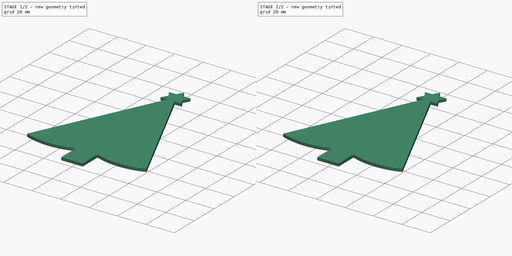
[diagram: build sequence overview — one tinted view per stage of 2, left to right]
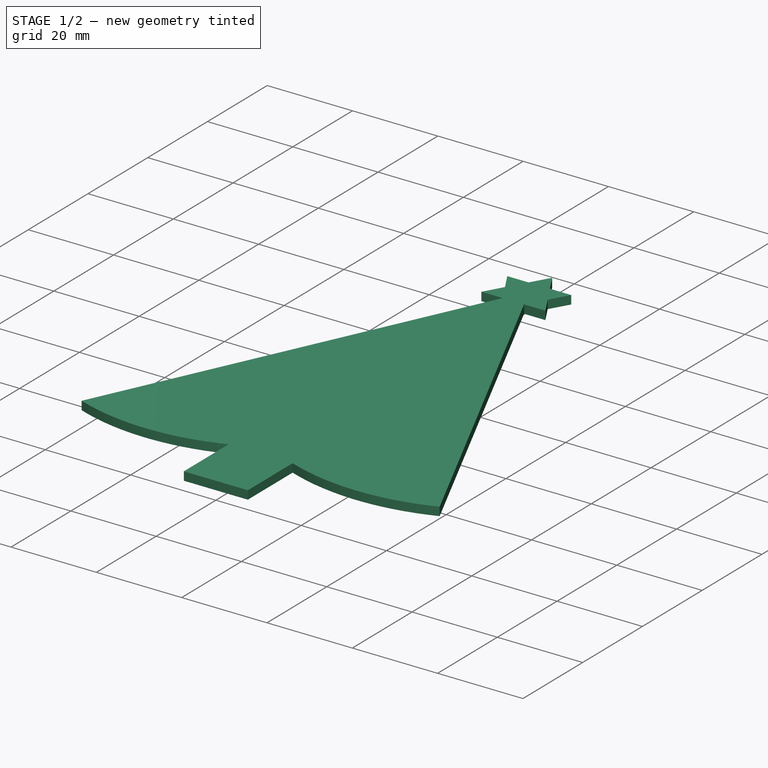
[diagram: stage 1 of 2 — iso view after this stage's code; geometry added in this stage tinted green]
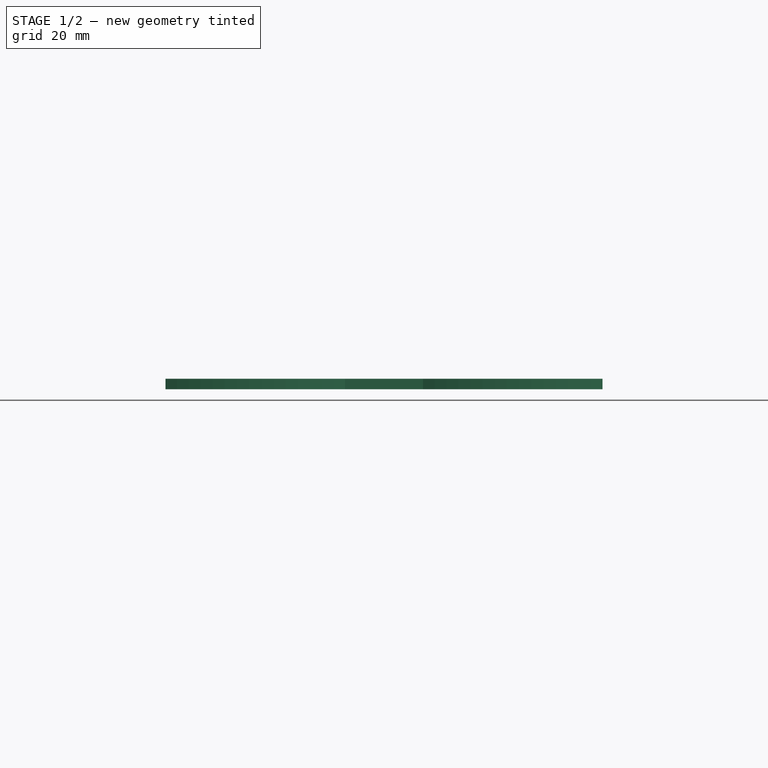
[diagram: stage 1 of 2 — front view after this stage's code; geometry added in this stage tinted green]
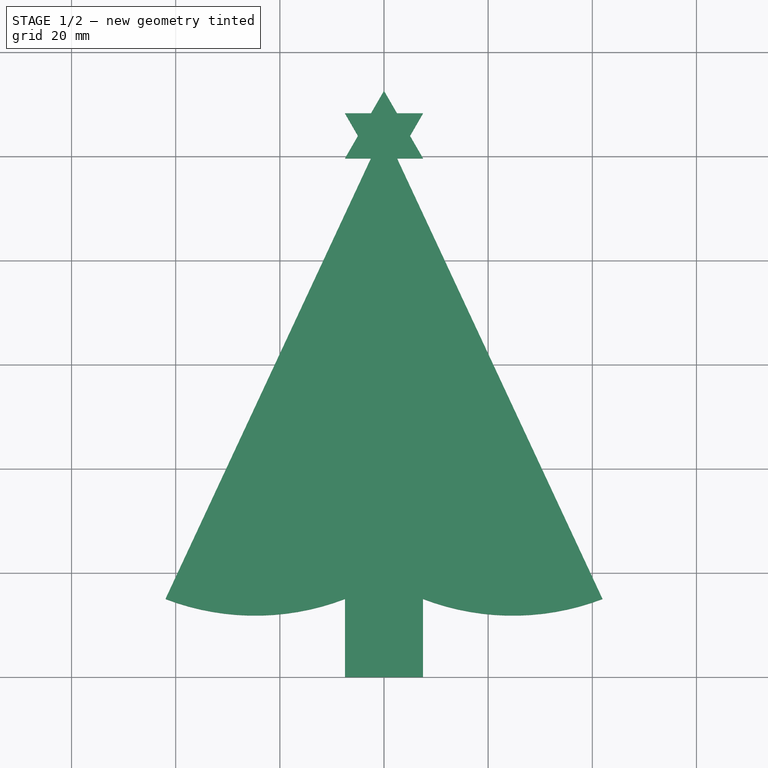
[diagram: stage 1 of 2 — top view after this stage's code; geometry added in this stage tinted green]
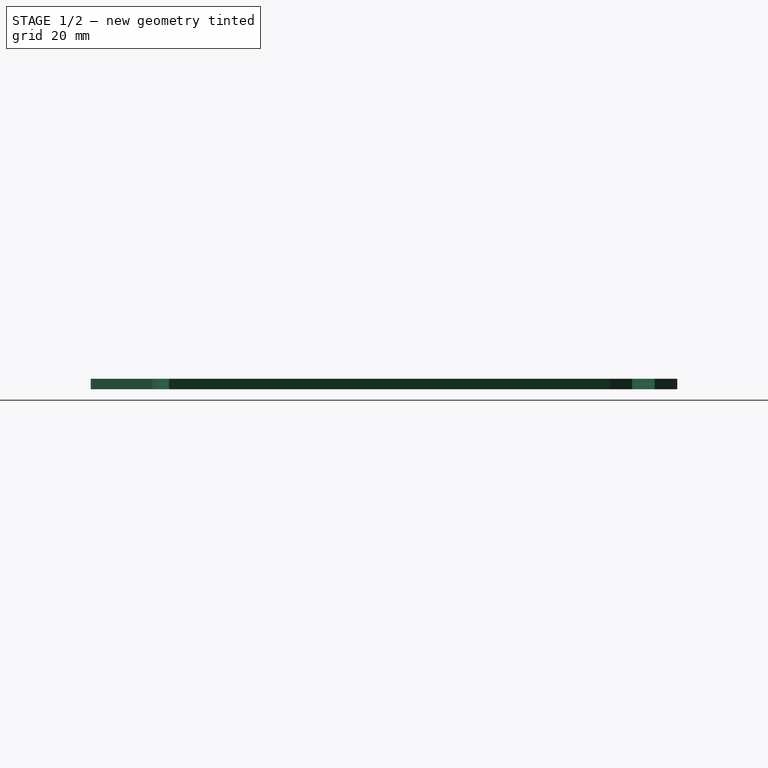
[diagram: stage 1 of 2 — right view after this stage's code; geometry added in this stage tinted green]
FCSTD DOCUMENT  (FreeCAD 0.21R33694 (Git))
Label: pcb_outline
License: All rights reserved
LicenseURL: http://en.wikipedia.org/wiki/All_rights_reserved
objects: Sketcher::SketchObject×3, PartDesign::Body×3, Part::Feature×3, PartDesign::Pad×2, Spreadsheet::Sheet×1, App::Part×1, Part::MultiFuse×1, Part::Part2DObjectPython×1
note: 15 computed .brp shape members not serialized (recipe doc carries the construction recipe); baked Part::Feature solids carry a one-line shape summary decoded from their .brp

FEATURE [Sketcher::SketchObject] Sketch
  FullyConstrained = true
  MapMode = 5
  Support = -> [XY_Plane001]
  sketch-geometry (7):
    g0: LineSegment StartX=7.5 StartY=0 StartZ=0 EndX=-7.5 EndY=0 EndZ=0
    g1: LineSegment StartX=-7.5 StartY=0 StartZ=0 EndX=-7.5 EndY=15 EndZ=0
    g2: LineSegment StartX=7.5 StartY=15 StartZ=0 EndX=7.5 EndY=0 EndZ=0
    g3: LineSegment StartX=0 StartY=105 StartZ=0 EndX=41.9677 EndY=15 EndZ=0
    g4: ArcOfCircle CenterX=24.7338 CenterY=60 CenterZ=0 NormalX=0 NormalY=0 NormalZ=1 AngleXU=0 Radius=48.1872 StartAngle=4.34665 EndAngle=5.07813
    g5: LineSegment StartX=0 StartY=105 StartZ=0 EndX=-41.9677 EndY=15 EndZ=0
    g6: ArcOfCircle CenterX=-24.7338 CenterY=60 CenterZ=0 NormalX=0 NormalY=0 NormalZ=1 AngleXU=0 Radius=48.1872 StartAngle=4.34665 EndAngle=5.07813
  constraints (22):
    c: Coincident(g0,g1)
    c: Coincident(g2,g0)
    c: Vertical(g1)
    c: Vertical(g2)
    c: PointOnObject(g0,g-1)
    c: DistanceX(g0,g0) = 15
    c: Symmetric(g0,g0,g-2)
    c: DistanceY(g0,g2) = 15
    c: DistanceY(g-1,g3) = 15
    c: Angle(g-2,g3) = 0.436332
    c: Coincident(g4,g3)
    c: DistanceY(g-1,g4) = 60
    c: DistanceY(g-1,g5) = 15
    c: Angle(g5,g-2) = 0.436332
    c: Coincident(g6,g5)
    c: Coincident(g6,g1)
    c: DistanceY(g-1,g6) = 60
    c: DistanceY(g0,g1) = 15
    c: Coincident(g4,g2)
    c: Coincident(g3,g5)
    c: PointOnObject(g3,g-2)
    c: DistanceY(g1,g3) = 90
FEATURE [Sketcher::SketchObject] Sketch001
  FullyConstrained = true
  MapMode = 5
  Support = -> [XY_Plane002]
  expr: Constraints[24] = <<params>>.star_side_length
  expr: Constraints[25] = <<params>>.star_side_length
  expr: Constraints[26] = <<params>>.star_side_length
  expr: Constraints[27] = <<params>>.star_side_length
  expr: Constraints[28] = <<params>>.star_side_length
  expr: Constraints[29] = <<params>>.star_side_length
  expr: Constraints[30] = <<params>>.star_side_length
  expr: Constraints[31] = <<params>>.star_side_length
  expr: Constraints[32] = <<params>>.star_side_length
  expr: Constraints[33] = <<params>>.star_side_length
  expr: Constraints[34] = <<params>>.star_side_length
  expr: Constraints[35] = <<params>>.star_side_length
  sketch-geometry (12):
    g0: LineSegment StartX=0 StartY=112.61 StartZ=0 EndX=2.5 EndY=108.28 EndZ=0
    g1: LineSegment StartX=2.5 StartY=108.28 StartZ=0 EndX=7.5 EndY=108.28 EndZ=0
    g2: LineSegment StartX=7.5 StartY=108.28 StartZ=0 EndX=5 EndY=103.95 EndZ=0
    g3: LineSegment StartX=5 StartY=103.95 StartZ=0 EndX=7.5 EndY=99.6199 EndZ=0
    g4: LineSegment StartX=-7.5 StartY=99.6199 StartZ=0 EndX=-5 EndY=103.95 EndZ=0
    g5: LineSegment StartX=-5 StartY=103.95 StartZ=0 EndX=-7.5 EndY=108.28 EndZ=0
    g6: LineSegment StartX=-7.5 StartY=108.28 StartZ=0 EndX=-2.5 EndY=108.28 EndZ=0
    g7: LineSegment StartX=-2.5 StartY=108.28 StartZ=0 EndX=0 EndY=112.61 EndZ=0
    g8: LineSegment StartX=-7.5 StartY=99.6199 StartZ=0 EndX=-2.5 EndY=99.6199 EndZ=0
    g9: LineSegment StartX=-2.5 StartY=99.6199 StartZ=0 EndX=0 EndY=95.2897 EndZ=0
    g10: LineSegment StartX=0 StartY=95.2897 StartZ=0 EndX=2.5 EndY=99.6199 EndZ=0
    g11: LineSegment StartX=2.5 StartY=99.6199 StartZ=0 EndX=7.5 EndY=99.6199 EndZ=0
  constraints (36):
    c: Coincident(g0,g1)
    c: Coincident(g1,g2)
    c: Coincident(g2,g3)
    c: Coincident(g4,g5)
    c: Coincident(g5,g6)
    c: Coincident(g6,g7)
    c: Coincident(g7,g0)
    c: PointOnObject(g0,g-2)
    c: Coincident(g4,g8)
    c: Coincident(g8,g9)
    c: Coincident(g9,g10)
    c: Coincident(g10,g11)
    c: Coincident(g11,g3)
    c: PointOnObject(g9,g-2)
    c: Horizontal(g5,g6)
    c: Horizontal(g6,g0)
    c: Horizontal(g0,g1)
    c: Horizontal(g4,g8)
    c: Horizontal(g8,g10)
    c: Horizontal(g10,g3)
    c: Vertical(g8,g6)
    c: Angle(g1,g0) = 2.0944
    c: Angle(g3,g2) = 2.0944
    c: DistanceY(g-1,g4) = 103.95
    c: Distance(g0) = 5
    c: Distance(g1) = 5
    c: Distance(g2) = 5
    c: Distance(g3) = 5
    c: Distance(g11) = 5
    c: Distance(g10) = 5
    c: Distance(g9) = 5
    c: Distance(g8) = 5
    c: Distance(g4) = 5
    c: Distance(g5) = 5
    c: Distance(g6) = 5
    c: Distance(g7) = 5
FEATURE [Spreadsheet::Sheet] Spreadsheet  label="params"
  cells = A4='star_side_length; B4(star_side_length)=5; A5='star_side_length_small; B5(star_side_length_small)=3.5
FEATURE [PartDesign::Pad] Pad
  Direction = (0,0,1)
  Length = 2
  Length2 = 10
  Profile = -> Sketch
  ReferenceAxis = -> Sketch [N_Axis]
  Type = 0
FEATURE [PartDesign::Body] Body  label="Tree"
  Group = -> [Sketch,Pad]
  Origin = -> Origin001
  Tip = -> Pad
FEATURE [PartDesign::Pad] Pad001
  Direction = (0,0,1)
  Length = 2
  Length2 = 10
  Profile = -> Sketch001
  ReferenceAxis = -> Sketch001 [N_Axis]
  Type = 0
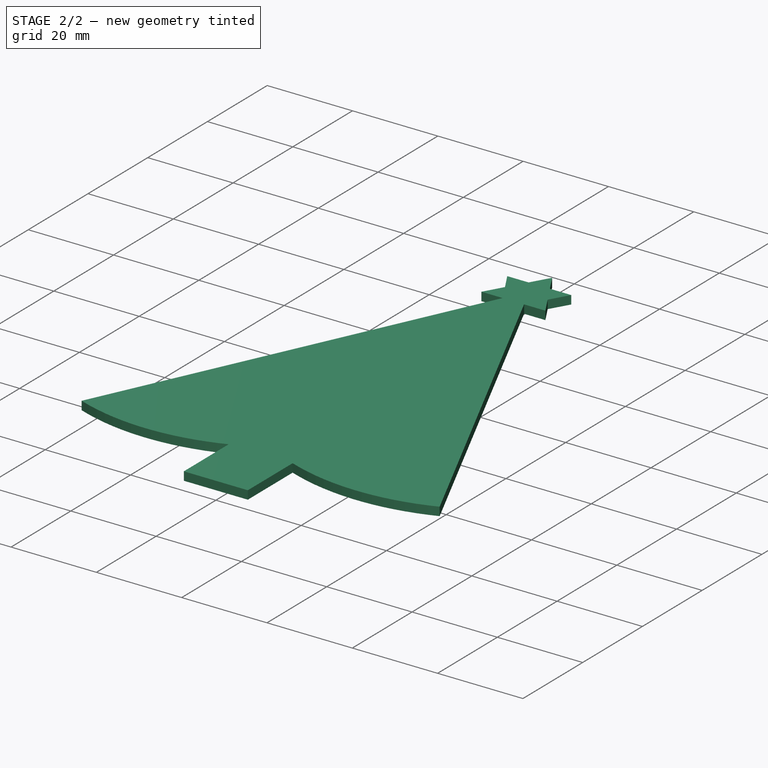
[diagram: stage 2 of 2 — iso view after this stage's code; geometry added in this stage tinted green]
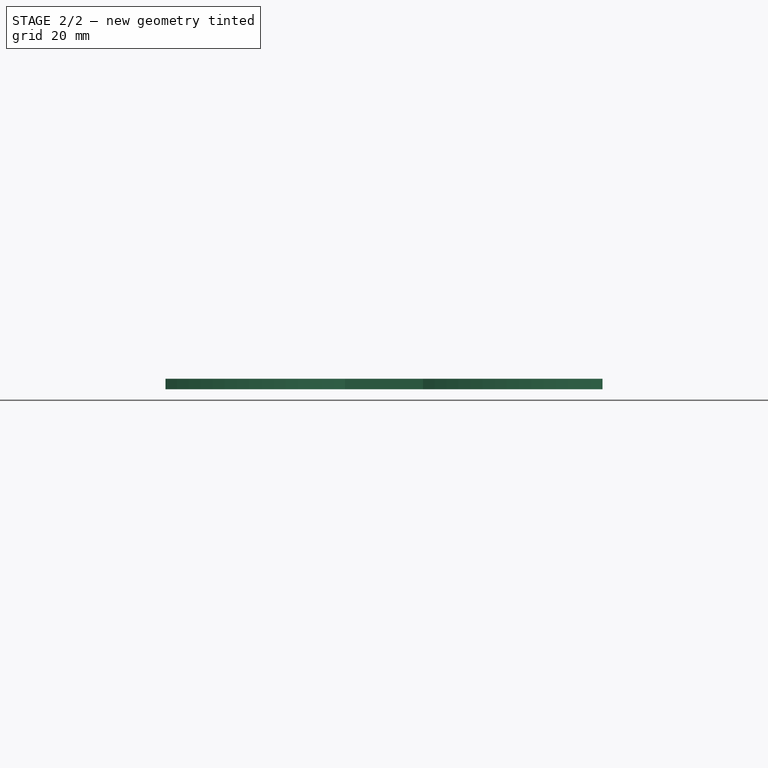
[diagram: stage 2 of 2 — front view after this stage's code; geometry added in this stage tinted green]
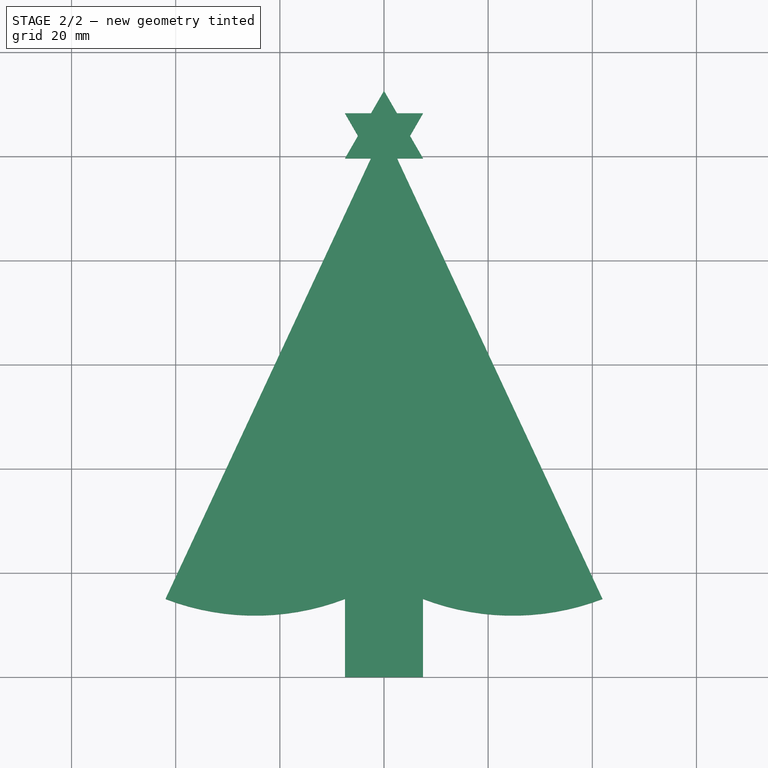
[diagram: stage 2 of 2 — top view after this stage's code; geometry added in this stage tinted green]
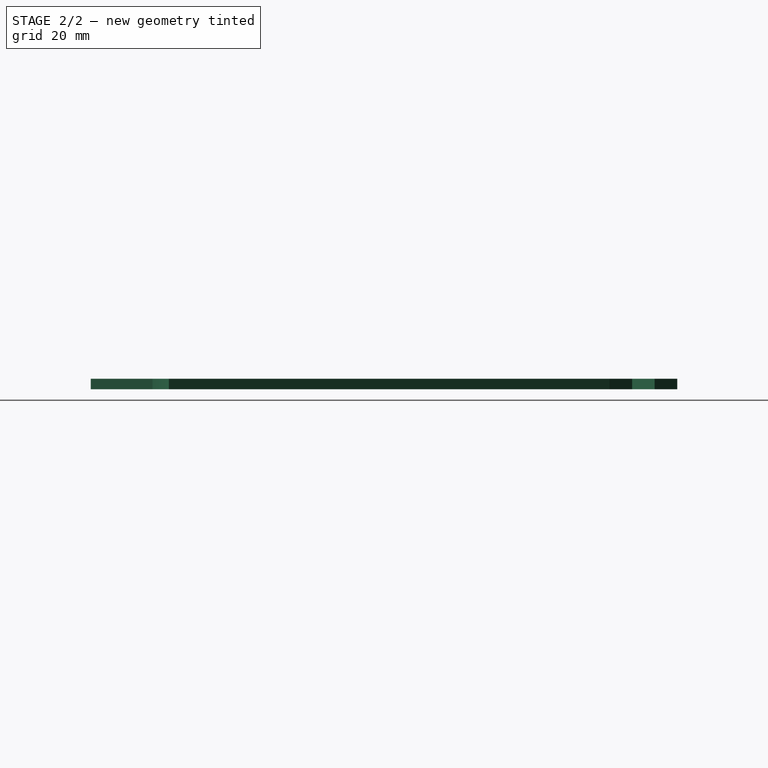
[diagram: stage 2 of 2 — right view after this stage's code; geometry added in this stage tinted green]
FEATURE [PartDesign::Body] Body001  label="Star"
  Group = -> [Sketch001,Pad001]
  Origin = -> Origin002
  Tip = -> Pad001
FEATURE [App::Part] Part
  Group = -> [Body,Body001]
  Origin = -> Origin
FEATURE [Part::MultiFuse] Fusion
  Refine = true
  Shapes = -> [Body,Body001]
FEATURE [Part::Part2DObjectPython] Shape2DView  # Draft 2D object (typed FeaturePython)
  AutoUpdate = true
  Base = -> Fusion
  Clip = false
  FuseArch = false
  HiddenLines = false
  InPlace = true
  OnlySolids = false
  Projection = (0,0,1)
  ProjectionMode = 0
  SegmentLength = 0.05
  Tessellation = false
  VisibleOnly = false
FEATURE [Part::Feature] Face
  shape: bbox 83.94 x 112.6 x 2e-07 mm, 1 faces, 0 solids (baked)
FEATURE [Sketcher::SketchObject] Sketch002
  FullyConstrained = true
  MapMode = 5
  Support = -> [XY_Plane003]
  expr: Constraints[23] = <<params>>.star_side_length_small
  expr: Constraints[24] = <<params>>.star_side_length_small
  expr: Constraints[25] = <<params>>.star_side_length_small
  expr: Constraints[26] = <<params>>.star_side_length_small
  expr: Constraints[27] = <<params>>.star_side_length_small
  expr: Constraints[28] = <<params>>.star_side_length_small
  expr: Constraints[29] = <<params>>.star_side_length_small
  expr: Constraints[30] = <<params>>.star_side_length_small
  expr: Constraints[31] = <<params>>.star_side_length_small
  expr: Constraints[32] = <<params>>.star_side_length_small
  expr: Constraints[33] = <<params>>.star_side_length_small
  expr: Constraints[34] = <<params>>.star_side_length_small
  sketch-geometry (12):
    g0: LineSegment StartX=2e-16 StartY=110.012 StartZ=0 EndX=1.75 EndY=106.981 EndZ=0
    g1: LineSegment StartX=1.75 StartY=106.981 StartZ=0 EndX=5.25 EndY=106.981 EndZ=0
    g2: LineSegment StartX=5.25 StartY=106.981 StartZ=0 EndX=3.5 EndY=103.95 EndZ=0
    g3: LineSegment StartX=3.5 StartY=103.95 StartZ=0 EndX=5.25 EndY=100.919 EndZ=0
    g4: LineSegment StartX=-5.25 StartY=100.919 StartZ=0 EndX=-3.5 EndY=103.95 EndZ=0
    g5: LineSegment StartX=-3.5 StartY=103.95 StartZ=0 EndX=-5.25 EndY=106.981 EndZ=0
    g6: LineSegment StartX=-5.25 StartY=106.981 StartZ=0 EndX=-1.75 EndY=106.981 EndZ=0
    g7: LineSegment StartX=-1.75 StartY=106.981 StartZ=0 EndX=2e-16 EndY=110.012 EndZ=0
    g8: LineSegment StartX=-5.25 StartY=100.919 StartZ=0 EndX=-1.75 EndY=100.919 EndZ=0
    g9: LineSegment StartX=-1.75 StartY=100.919 StartZ=0 EndX=2e-16 EndY=97.8878 EndZ=0
    g10: LineSegment StartX=2e-16 StartY=97.8878 StartZ=0 EndX=1.75 EndY=100.919 EndZ=0
    g11: LineSegment StartX=1.75 StartY=100.919 StartZ=0 EndX=5.25 EndY=100.919 EndZ=0
  constraints (36):
    c: Coincident(g0,g1)
    c: Coincident(g1,g2)
    c: Coincident(g2,g3)
    c: Coincident(g4,g5)
    c: Coincident(g5,g6)
    c: Coincident(g6,g7)
    c: Coincident(g7,g0)
    c: PointOnObject(g0,g-2)
    c: Coincident(g4,g8)
    c: Coincident(g8,g9)
    c: Coincident(g9,g10)
    c: Coincident(g10,g11)
    c: Coincident(g11,g3)
    c: PointOnObject(g9,g-2)
    c: Horizontal(g5,g6)
    c: Horizontal(g6,g0)
    c: Horizontal(g0,g1)
    c: Horizontal(g4,g8)
    c: Horizontal(g8,g10)
    c: Horizontal(g10,g3)
    c: Vertical(g8,g6)
    c: Angle(g1,g0) = 2.0944
    c: Angle(g3,g2) = 2.0944
    c: Distance(g0) = 3.5
    c: Distance(g1) = 3.5
    c: Distance(g2) = 3.5
    c: Distance(g3) = 3.5
    c: Distance(g11) = 3.5
    c: Distance(g10) = 3.5
    c: Distance(g9) = 3.5
    c: Distance(g8) = 3.5
    c: Distance(g5) = 3.5
    c: Distance(g6) = 3.5
    c: Distance(g7) = 3.5
    c: Distance(g4) = 3.5
    c: DistanceY(g-1,g4) = 103.95
FEATURE [PartDesign::Body] Body002  label="Star001"
  Group = -> [Sketch002]
  Origin = -> Origin003
FEATURE [Part::Feature] Face001  label="star_inner"
  shape: bbox 10.5 x 12.12 x 2e-07 mm, 1 faces, 0 solids (baked)
FEATURE [Part::Feature] Face002
  shape: bbox 10.5 x 12.12 x 2e-07 mm, 1 faces, 0 solids (baked)
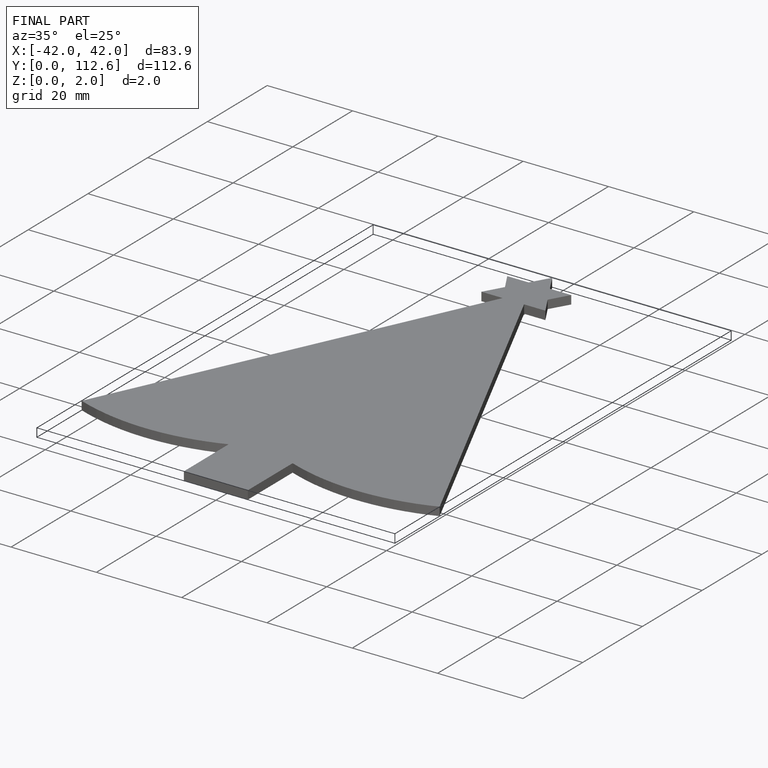
[diagram: finished part — iso view with bounding-box wireframe]
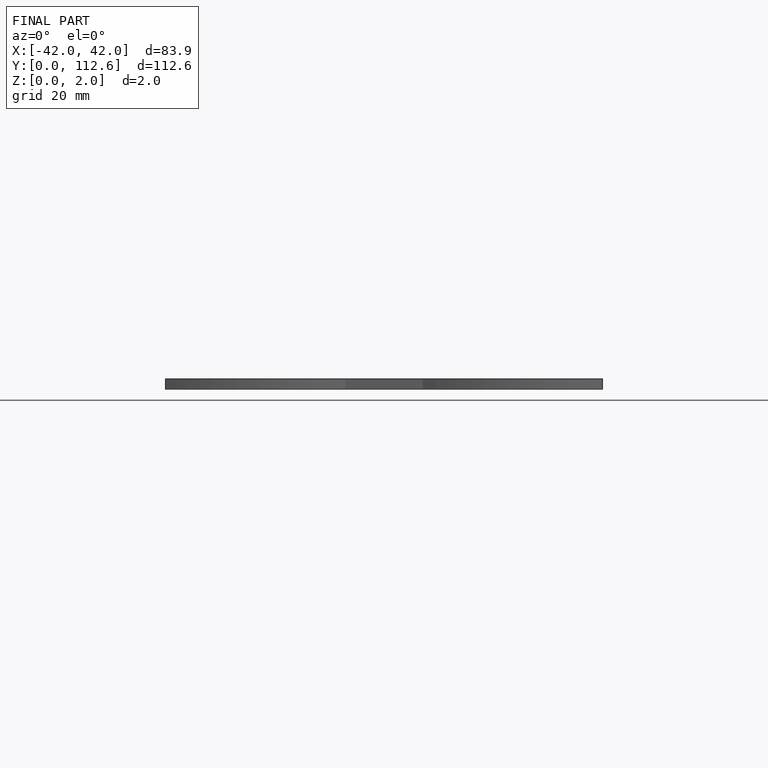
[diagram: finished part — front view with bounding-box wireframe]
